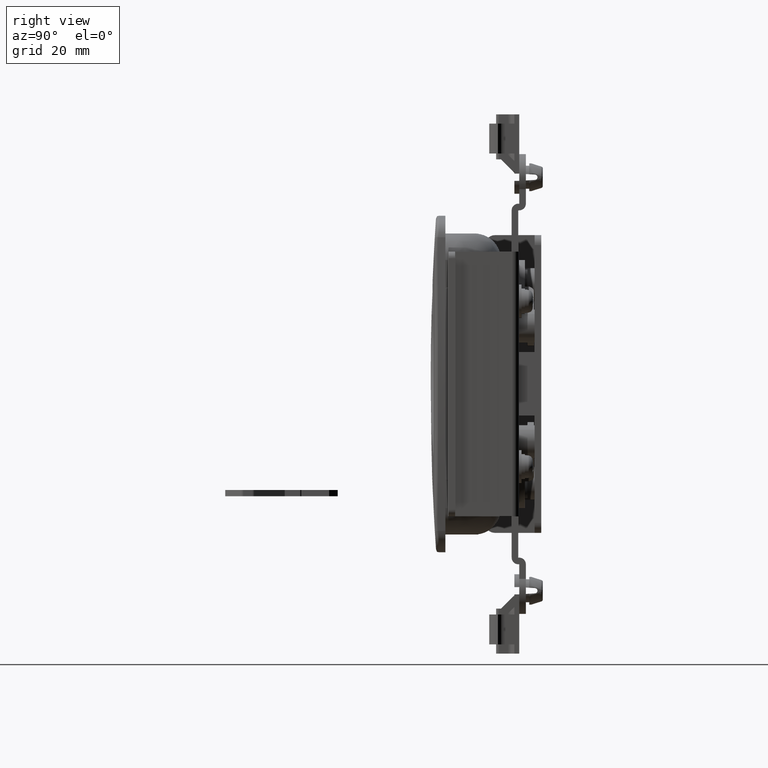
[diagram: clean part render]
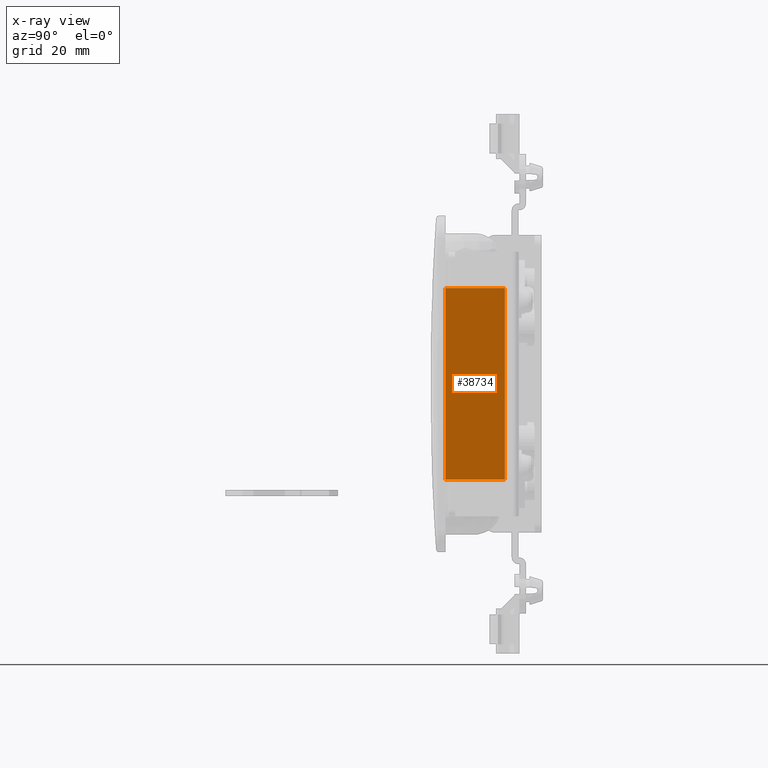
[diagram: x-ray — body ghosted, one internal face saturated and labeled with its STEP entity id]
A machine part, right view, then the same camera in x-ray: the body is ghosted and one INTERNAL B-rep face — a face not visible from any outside direction — is saturated and labeled: STEP entity #38734.
In plain terms, the highlighted face is a freeform B-spline surface patch.
Its self-contained STEP definition (entity closure, byte-faithful):
#36830=CARTESIAN_POINT('',(35.000999999999998,-11.0,-29.0));
#36831=VERTEX_POINT('',#36830);
#36885=CARTESIAN_POINT('',(35.000999999999998,-29.0,-29.0));
#36886=VERTEX_POINT('',#36885);
#36924=CARTESIAN_POINT('',(35.000999999999998,-29.0,-29.0));
#36925=CARTESIAN_POINT('',(35.000999999999998,-11.0,-29.0));
#36926=QUASI_UNIFORM_CURVE('',1,(#36924,#36925),.UNSPECIFIED.,.F.,.U.);
#36927=EDGE_CURVE('',#36886,#36831,#36926,.T.);
#37032=CARTESIAN_POINT('',(35.000999999999998,-11.0,29.0));
#37033=VERTEX_POINT('',#37032);
#37083=CARTESIAN_POINT('',(35.000999999999998,-29.0,29.0));
#37084=VERTEX_POINT('',#37083);
#37116=CARTESIAN_POINT('',(35.000999999999998,-11.0,29.0));
#37117=CARTESIAN_POINT('',(35.000999999999998,-29.0,29.0));
#37118=QUASI_UNIFORM_CURVE('',1,(#37116,#37117),.UNSPECIFIED.,.F.,.U.);
#37119=EDGE_CURVE('',#37033,#37084,#37118,.T.);
#38710=CARTESIAN_POINT('',(35.000999999999998,-11.0,-29.0));
#38711=CARTESIAN_POINT('',(35.000999999999998,-11.0,29.0));
#38712=QUASI_UNIFORM_CURVE('',1,(#38710,#38711),.UNSPECIFIED.,.F.,.U.);
#38713=EDGE_CURVE('',#36831,#37033,#38712,.T.);
#38719=CARTESIAN_POINT('',(35.000999999999998,-29.899099965112509,31.897099887584751));
#38720=CARTESIAN_POINT('',(35.000999999999998,-29.899099965112509,-31.897101443265981));
#38721=CARTESIAN_POINT('',(35.000999999999998,-10.100899552089871,31.897099887584751));
#38722=CARTESIAN_POINT('',(35.000999999999998,-10.100899552089871,-31.897101443265981));
#38723=B_SPLINE_SURFACE_WITH_KNOTS('',1,1,((#38719,#38721),(#38720,#38722)),.UNSPECIFIED.,.F.,.F.,.U.,(2,2),(2,2),(0.0,63.794201330850733),(0.0,19.798200413022641),.UNSPECIFIED.);
#38724=ORIENTED_EDGE('',*,*,#38713,.T.);
#38725=ORIENTED_EDGE('',*,*,#37119,.T.);
#38726=CARTESIAN_POINT('',(35.000999999999998,-29.0,-29.0));
#38727=CARTESIAN_POINT('',(35.000999999999998,-29.0,29.0));
#38728=QUASI_UNIFORM_CURVE('',1,(#38726,#38727),.UNSPECIFIED.,.F.,.U.);
#38729=EDGE_CURVE('',#36886,#37084,#38728,.T.);
#38730=ORIENTED_EDGE('',*,*,#38729,.F.);
#38731=ORIENTED_EDGE('',*,*,#36927,.T.);
#38732=EDGE_LOOP('',(#38724,#38725,#38730,#38731));
#38733=FACE_OUTER_BOUND('',#38732,.T.);
#38734=ADVANCED_FACE('',(#38733),#38723,.T.);